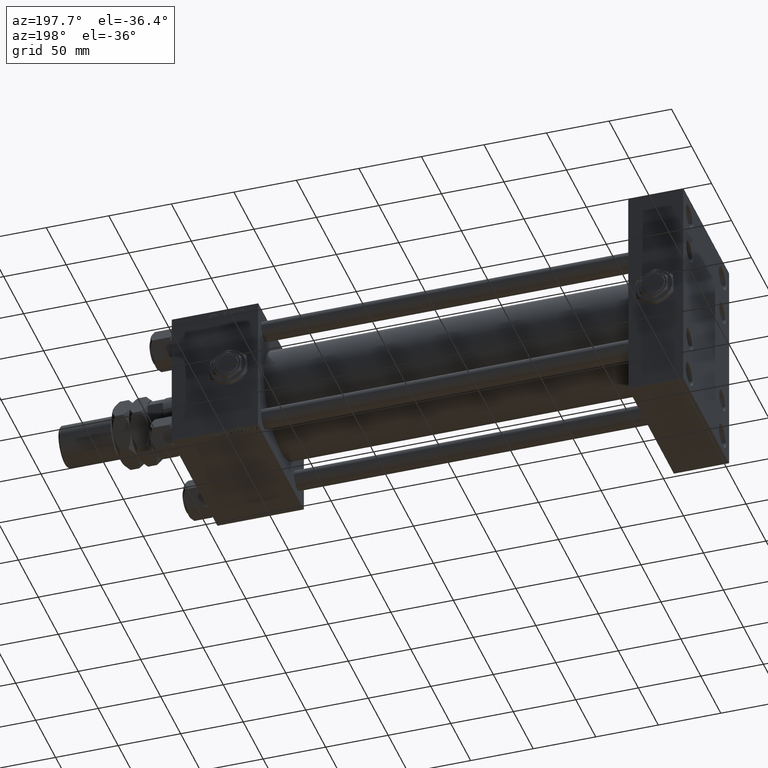
[diagram: clean part render]
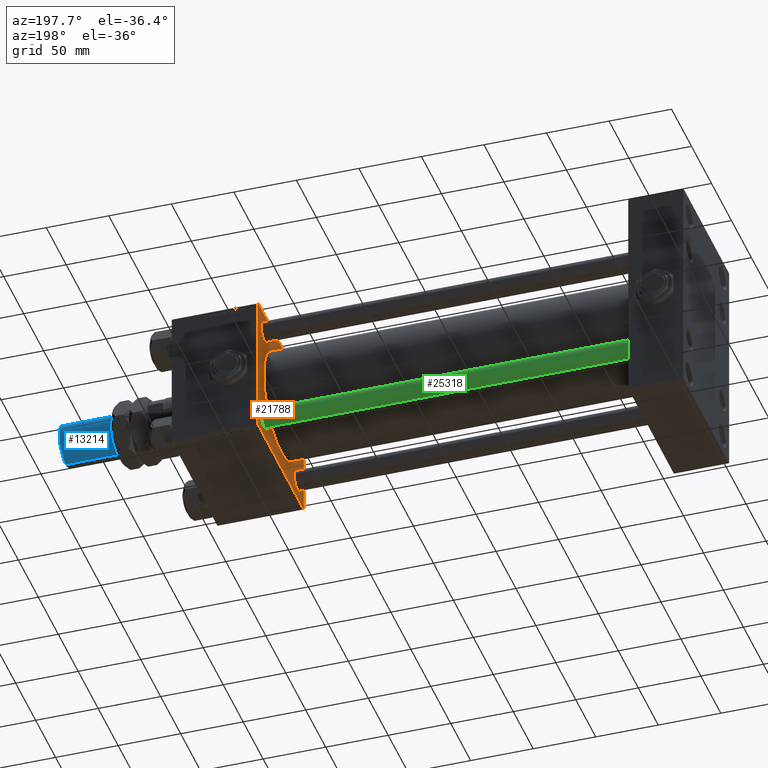
[diagram: same view with three faces highlighted in distinct colors, each labeled with its STEP entity id]
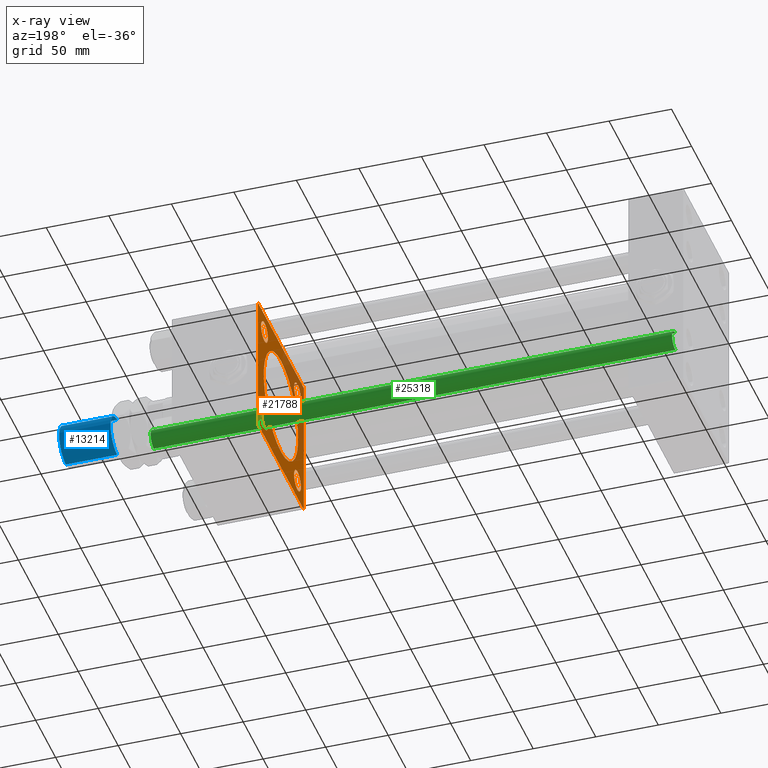
[diagram: x-ray of the same camera — body ghosted, the three highlighted faces saturated]
A machine part, auxiliary view with three faces highlighted in distinct colors.
The next image is the same camera in x-ray (body ghosted, the three faces saturated) — at least one of them is partly hidden behind the body in this view.
Their STEP definitions:

[orange] entity #21788 — the highlighted planar face has unit normal (-1, 0, 0).
#540 = AXIS2_PLACEMENT_3D ( 'NONE', #29368, #42244, #24723 ) ;
#1245 = CARTESIAN_POINT ( 'NONE',  ( 339.9999999999999432, 41.34999999999999432, -32.84999999999999432 ) ) ;
#1278 = CARTESIAN_POINT ( 'NONE',  ( 339.9999999999999432, -57.49999999999999289, -57.00000000000003553 ) ) ;
#1740 = DIRECTION ( 'NONE',  ( -0.000000000000000000, 0.7071067811865916486, 0.7071067811865033859 ) ) ;
#1882 = LINE ( 'NONE', #22691, #53418 ) ;
#2381 = VERTEX_POINT ( 'NONE', #39546 ) ;
#2753 = DIRECTION ( 'NONE',  ( 1.000000000000000000, -0.000000000000000000, 0.000000000000000000 ) ) ;
#2756 = EDGE_CURVE ( 'NONE', #51855, #49587, #40961, .T. ) ;
#2968 = CARTESIAN_POINT ( 'NONE',  ( 339.9999999999999432, 57.25000000000000711, 57.25000000000000711 ) ) ;
#3002 = CARTESIAN_POINT ( 'NONE',  ( 339.9999999999999432, -57.24999999999642597, -57.25000000000358114 ) ) ;
#3227 = CIRCLE ( 'NONE', #47851, 8.500000000000007105 ) ;
#3927 = EDGE_CURVE ( 'NONE', #13179, #33419, #50638, .T. ) ;
#4231 = DIRECTION ( 'NONE',  ( 0.000000000000000000, 0.000000000000000000, 1.000000000000000000 ) ) ;
#4646 = DIRECTION ( 'NONE',  ( 0.000000000000000000, 0.000000000000000000, -1.000000000000000000 ) ) ;
#5471 = CARTESIAN_POINT ( 'NONE',  ( 339.9999999999999432, -41.34999999999998721, 49.85000000000002274 ) ) ;
#5749 = AXIS2_PLACEMENT_3D ( 'NONE', #16836, #37934, #17924 ) ;
#5795 = CIRCLE ( 'NONE', #540, 8.500000000000007105 ) ;
#5798 = EDGE_CURVE ( 'NONE', #33419, #13179, #47227, .T. ) ;
#5812 = CARTESIAN_POINT ( 'NONE',  ( 339.9999999999999432, 41.34999999999999432, 49.85000000000001563 ) ) ;
#6163 = ORIENTED_EDGE ( 'NONE', *, *, #3927, .T. ) ;
#6432 = ORIENTED_EDGE ( 'NONE', *, *, #28212, .T. ) ;
#6568 = CARTESIAN_POINT ( 'NONE',  ( 339.9999999999999432, -41.34999999999998721, -32.85000000000000142 ) ) ;
#6945 = DIRECTION ( 'NONE',  ( -1.000000000000000000, 0.000000000000000000, -0.000000000000000000 ) ) ;
#7216 = CARTESIAN_POINT ( 'NONE',  ( 339.9999999999999432, 0.000000000000000000, 0.000000000000000000 ) ) ;
#7299 = VERTEX_POINT ( 'NONE', #41537 ) ;
#7443 = EDGE_CURVE ( 'NONE', #27370, #47307, #19069, .T. ) ;
#7678 = CARTESIAN_POINT ( 'NONE',  ( 339.9999999999999432, -57.49999999999999289, 57.00000000000004974 ) ) ;
#7747 = FACE_BOUND ( 'NONE', #22627, .T. ) ;
#7915 = CARTESIAN_POINT ( 'NONE',  ( 339.9999999999999432, 41.34999999999999432, 41.35000000000000142 ) ) ;
#8013 = FACE_BOUND ( 'NONE', #41995, .T. ) ;
#8372 = VERTEX_POINT ( 'NONE', #5471 ) ;
#9138 = ORIENTED_EDGE ( 'NONE', *, *, #53146, .T. ) ;
#9851 = CARTESIAN_POINT ( 'NONE',  ( 339.9999999999999432, 57.50000000000000000, -56.99999999999996447 ) ) ;
#11018 = CARTESIAN_POINT ( 'NONE',  ( 339.9999999999999432, -57.24999999999642597, 57.25000000000358114 ) ) ;
#11361 = CIRCLE ( 'NONE', #41964, 8.500000000000007105 ) ;
#11640 = CARTESIAN_POINT ( 'NONE',  ( 339.9999999999999432, -41.34999999999998721, -41.35000000000000853 ) ) ;
#12387 = EDGE_CURVE ( 'NONE', #7299, #40552, #45458, .T. ) ;
#12975 = VERTEX_POINT ( 'NONE', #5812 ) ;
#13179 = VERTEX_POINT ( 'NONE', #29569 ) ;
#14060 = VECTOR ( 'NONE', #14537, 1000.000000000000114 ) ;
#14537 = DIRECTION ( 'NONE',  ( 0.000000000000000000, -0.7071067811865916486, 0.7071067811865033859 ) ) ;
#14737 = DIRECTION ( 'NONE',  ( 1.000000000000000000, -0.000000000000000000, 0.000000000000000000 ) ) ;
#14790 = AXIS2_PLACEMENT_3D ( 'NONE', #11640, #40418, #31915 ) ;
#14832 = CARTESIAN_POINT ( 'NONE',  ( 339.9999999999999432, -41.34999999999998721, 32.85000000000000142 ) ) ;
#15006 = ORIENTED_EDGE ( 'NONE', *, *, #38884, .T. ) ;
#15169 = PLANE ( 'NONE',  #29270 ) ;
#16086 = EDGE_CURVE ( 'NONE', #49587, #51855, #52691, .T. ) ;
#16836 = CARTESIAN_POINT ( 'NONE',  ( 339.9999999999999432, 41.34999999999999432, -41.35000000000000142 ) ) ;
#17106 = CIRCLE ( 'NONE', #5749, 8.500000000000007105 ) ;
#17223 = EDGE_CURVE ( 'NONE', #46890, #7299, #32244, .T. ) ;
#17924 = DIRECTION ( 'NONE',  ( 0.000000000000000000, 0.000000000000000000, 1.000000000000000000 ) ) ;
#17986 = VECTOR ( 'NONE', #44606, 1000.000000000000114 ) ;
#18653 = CARTESIAN_POINT ( 'NONE',  ( 339.9999999999999432, -41.34999999999998721, 41.35000000000000853 ) ) ;
#19069 = LINE ( 'NONE', #23437, #41035 ) ;
#19371 = CARTESIAN_POINT ( 'NONE',  ( 339.9999999999999432, -2.602085213965210642E-15, 43.00000000000000000 ) ) ;
#19749 = CARTESIAN_POINT ( 'NONE',  ( 339.9999999999999432, 41.34999999999999432, -49.85000000000001563 ) ) ;
#20346 = CARTESIAN_POINT ( 'NONE',  ( 339.9999999999999432, 57.00000000000000000, 57.50000000000000711 ) ) ;
#20440 = VERTEX_POINT ( 'NONE', #20346 ) ;
#20454 = DIRECTION ( 'NONE',  ( -0.000000000000000000, -0.7071067811865474617, -0.7071067811865474617 ) ) ;
#20465 = LINE ( 'NONE', #2968, #17986 ) ;
#21788 = ADVANCED_FACE ( 'NONE', ( #32383, #8013, #40099, #7747, #52698, #35975 ), #15169, .T. ) ;
#21942 = ORIENTED_EDGE ( 'NONE', *, *, #12387, .T. ) ;
#22516 = VECTOR ( 'NONE', #1740, 1000.000000000000114 ) ;
#22627 = EDGE_LOOP ( 'NONE', ( #24035, #6163 ) ) ;
#22691 = CARTESIAN_POINT ( 'NONE',  ( 339.9999999999999432, 57.50000000000000000, 57.50000000000000711 ) ) ;
#23162 = EDGE_CURVE ( 'NONE', #20440, #42677, #20465, .T. ) ;
#23437 = CARTESIAN_POINT ( 'NONE',  ( 339.9999999999999432, -57.49999999999999289, 57.49999999999999289 ) ) ;
#24035 = ORIENTED_EDGE ( 'NONE', *, *, #5798, .T. ) ;
#24050 = ORIENTED_EDGE ( 'NONE', *, *, #47164, .T. ) ;
#24598 = ORIENTED_EDGE ( 'NONE', *, *, #33784, .T. ) ;
#24638 = CARTESIAN_POINT ( 'NONE',  ( 339.9999999999999432, 57.50000000000000000, -57.49999999999996447 ) ) ;
#24723 = DIRECTION ( 'NONE',  ( 0.000000000000000000, 0.000000000000000000, 1.000000000000000000 ) ) ;
#24787 = ORIENTED_EDGE ( 'NONE', *, *, #35345, .T. ) ;
#24867 = CARTESIAN_POINT ( 'NONE',  ( 339.9999999999999432, -56.99999999999998579, 57.49999999999999289 ) ) ;
#24883 = DIRECTION ( 'NONE',  ( 0.000000000000000000, 0.000000000000000000, 1.000000000000000000 ) ) ;
#25278 = AXIS2_PLACEMENT_3D ( 'NONE', #30611, #47329, #34995 ) ;
#27370 = VERTEX_POINT ( 'NONE', #7678 ) ;
#27652 = DIRECTION ( 'NONE',  ( 0.000000000000000000, 0.000000000000000000, 1.000000000000000000 ) ) ;
#28130 = DIRECTION ( 'NONE',  ( 1.000000000000000000, 0.000000000000000000, 0.000000000000000000 ) ) ;
#28212 = EDGE_CURVE ( 'NONE', #8372, #46688, #5795, .T. ) ;
#29033 = AXIS2_PLACEMENT_3D ( 'NONE', #33641, #41598, #4646 ) ;
#29110 = VECTOR ( 'NONE', #20454, 1000.000000000000114 ) ;
#29270 = AXIS2_PLACEMENT_3D ( 'NONE', #7216, #6945, #31860 ) ;
#29368 = CARTESIAN_POINT ( 'NONE',  ( 339.9999999999999432, -41.34999999999998721, 41.35000000000000853 ) ) ;
#29569 = CARTESIAN_POINT ( 'NONE',  ( 339.9999999999999432, -41.34999999999998721, -49.85000000000002274 ) ) ;
#30611 = CARTESIAN_POINT ( 'NONE',  ( 339.9999999999999432, 41.34999999999999432, -41.35000000000000142 ) ) ;
#30749 = VERTEX_POINT ( 'NONE', #24867 ) ;
#31130 = EDGE_CURVE ( 'NONE', #27370, #30749, #31564, .T. ) ;
#31564 = LINE ( 'NONE', #11018, #22516 ) ;
#31860 = DIRECTION ( 'NONE',  ( -0.000000000000000000, 0.000000000000000000, 1.000000000000000000 ) ) ;
#31915 = DIRECTION ( 'NONE',  ( 0.000000000000000000, 0.000000000000000000, 1.000000000000000000 ) ) ;
#32244 = LINE ( 'NONE', #33858, #29110 ) ;
#32333 = VERTEX_POINT ( 'NONE', #19749 ) ;
#32383 = FACE_BOUND ( 'NONE', #38176, .T. ) ;
#32399 = CIRCLE ( 'NONE', #35042, 8.500000000000007105 ) ;
#32773 = DIRECTION ( 'NONE',  ( 0.000000000000000000, 0.000000000000000000, -1.000000000000000000 ) ) ;
#32781 = ORIENTED_EDGE ( 'NONE', *, *, #31130, .T. ) ;
#33292 = CARTESIAN_POINT ( 'NONE',  ( 339.9999999999999432, 2.663896022368408223E-15, -43.00000000000000000 ) ) ;
#33313 = LINE ( 'NONE', #53625, #40913 ) ;
#33419 = VERTEX_POINT ( 'NONE', #6568 ) ;
#33641 = CARTESIAN_POINT ( 'NONE',  ( 339.9999999999999432, -2.602085213965210642E-15, 0.000000000000000000 ) ) ;
#33784 = EDGE_CURVE ( 'NONE', #32333, #42233, #44533, .T. ) ;
#33858 = CARTESIAN_POINT ( 'NONE',  ( 339.9999999999999432, 57.24999999999998579, -57.24999999999998579 ) ) ;
#34363 = EDGE_LOOP ( 'NONE', ( #37066, #45638 ) ) ;
#34746 = EDGE_CURVE ( 'NONE', #20440, #30749, #1882, .T. ) ;
#34860 = EDGE_LOOP ( 'NONE', ( #21942, #35589, #53163, #32781, #43776, #46581, #24050, #52581 ) ) ;
#34995 = DIRECTION ( 'NONE',  ( 0.000000000000000000, 0.000000000000000000, 1.000000000000000000 ) ) ;
#35042 = AXIS2_PLACEMENT_3D ( 'NONE', #7915, #49550, #24883 ) ;
#35221 = EDGE_CURVE ( 'NONE', #40552, #47307, #47683, .T. ) ;
#35345 = EDGE_CURVE ( 'NONE', #2381, #12975, #32399, .T. ) ;
#35589 = ORIENTED_EDGE ( 'NONE', *, *, #35221, .T. ) ;
#35765 = DIRECTION ( 'NONE',  ( 0.000000000000000000, 0.000000000000000000, -1.000000000000000000 ) ) ;
#35975 = FACE_OUTER_BOUND ( 'NONE', #34860, .T. ) ;
#36622 = CARTESIAN_POINT ( 'NONE',  ( 339.9999999999999432, -2.602085213965210642E-15, 0.000000000000000000 ) ) ;
#36626 = DIRECTION ( 'NONE',  ( 1.000000000000000000, -0.000000000000000000, 0.000000000000000000 ) ) ;
#37066 = ORIENTED_EDGE ( 'NONE', *, *, #16086, .T. ) ;
#37934 = DIRECTION ( 'NONE',  ( 1.000000000000000000, -0.000000000000000000, 0.000000000000000000 ) ) ;
#38176 = EDGE_LOOP ( 'NONE', ( #6432, #41401 ) ) ;
#38705 = CARTESIAN_POINT ( 'NONE',  ( 339.9999999999999432, -56.99999999999998579, -57.49999999999997868 ) ) ;
#38884 = EDGE_CURVE ( 'NONE', #42233, #32333, #17106, .T. ) ;
#39388 = AXIS2_PLACEMENT_3D ( 'NONE', #44307, #14737, #44574 ) ;
#39546 = CARTESIAN_POINT ( 'NONE',  ( 339.9999999999999432, 41.34999999999999432, 32.84999999999999432 ) ) ;
#40099 = FACE_BOUND ( 'NONE', #47925, .T. ) ;
#40262 = CARTESIAN_POINT ( 'NONE',  ( 339.9999999999999432, 57.50000000000000000, 57.00000000000000711 ) ) ;
#40418 = DIRECTION ( 'NONE',  ( 1.000000000000000000, -0.000000000000000000, 0.000000000000000000 ) ) ;
#40475 = DIRECTION ( 'NONE',  ( 0.000000000000000000, 0.000000000000000000, -1.000000000000000000 ) ) ;
#40552 = VERTEX_POINT ( 'NONE', #38705 ) ;
#40913 = VECTOR ( 'NONE', #32773, 1000.000000000000000 ) ;
#40961 = CIRCLE ( 'NONE', #52365, 43.00000000000000000 ) ;
#41035 = VECTOR ( 'NONE', #35765, 1000.000000000000000 ) ;
#41401 = ORIENTED_EDGE ( 'NONE', *, *, #45460, .T. ) ;
#41537 = CARTESIAN_POINT ( 'NONE',  ( 339.9999999999999432, 57.00000000000000000, -57.49999999999996447 ) ) ;
#41598 = DIRECTION ( 'NONE',  ( 1.000000000000000000, 0.000000000000000000, 0.000000000000000000 ) ) ;
#41738 = CARTESIAN_POINT ( 'NONE',  ( 339.9999999999999432, 41.34999999999999432, 41.35000000000000142 ) ) ;
#41964 = AXIS2_PLACEMENT_3D ( 'NONE', #41738, #36626, #4231 ) ;
#41995 = EDGE_LOOP ( 'NONE', ( #9138, #24787 ) ) ;
#42233 = VERTEX_POINT ( 'NONE', #1245 ) ;
#42244 = DIRECTION ( 'NONE',  ( 1.000000000000000000, -0.000000000000000000, 0.000000000000000000 ) ) ;
#42677 = VERTEX_POINT ( 'NONE', #40262 ) ;
#43776 = ORIENTED_EDGE ( 'NONE', *, *, #34746, .F. ) ;
#44307 = CARTESIAN_POINT ( 'NONE',  ( 339.9999999999999432, -41.34999999999998721, -41.35000000000000853 ) ) ;
#44533 = CIRCLE ( 'NONE', #25278, 8.500000000000007105 ) ;
#44574 = DIRECTION ( 'NONE',  ( 0.000000000000000000, 0.000000000000000000, 1.000000000000000000 ) ) ;
#44606 = DIRECTION ( 'NONE',  ( 0.000000000000000000, 0.7071067811865474617, -0.7071067811865474617 ) ) ;
#44815 = VECTOR ( 'NONE', #53954, 1000.000000000000000 ) ;
#45458 = LINE ( 'NONE', #24638, #44815 ) ;
#45460 = EDGE_CURVE ( 'NONE', #46688, #8372, #3227, .T. ) ;
#45638 = ORIENTED_EDGE ( 'NONE', *, *, #2756, .T. ) ;
#46581 = ORIENTED_EDGE ( 'NONE', *, *, #23162, .T. ) ;
#46688 = VERTEX_POINT ( 'NONE', #14832 ) ;
#46890 = VERTEX_POINT ( 'NONE', #9851 ) ;
#47164 = EDGE_CURVE ( 'NONE', #42677, #46890, #33313, .T. ) ;
#47227 = CIRCLE ( 'NONE', #39388, 8.500000000000007105 ) ;
#47307 = VERTEX_POINT ( 'NONE', #1278 ) ;
#47329 = DIRECTION ( 'NONE',  ( 1.000000000000000000, -0.000000000000000000, 0.000000000000000000 ) ) ;
#47683 = LINE ( 'NONE', #3002, #14060 ) ;
#47851 = AXIS2_PLACEMENT_3D ( 'NONE', #18653, #2753, #27652 ) ;
#47925 = EDGE_LOOP ( 'NONE', ( #15006, #24598 ) ) ;
#49550 = DIRECTION ( 'NONE',  ( 1.000000000000000000, -0.000000000000000000, 0.000000000000000000 ) ) ;
#49587 = VERTEX_POINT ( 'NONE', #19371 ) ;
#50638 = CIRCLE ( 'NONE', #14790, 8.500000000000007105 ) ;
#51451 = DIRECTION ( 'NONE',  ( 0.000000000000000000, -1.000000000000000000, -1.206764157201257291E-16 ) ) ;
#51855 = VERTEX_POINT ( 'NONE', #33292 ) ;
#52365 = AXIS2_PLACEMENT_3D ( 'NONE', #36622, #28130, #40475 ) ;
#52581 = ORIENTED_EDGE ( 'NONE', *, *, #17223, .T. ) ;
#52691 = CIRCLE ( 'NONE', #29033, 43.00000000000000000 ) ;
#52698 = FACE_BOUND ( 'NONE', #34363, .T. ) ;
#53146 = EDGE_CURVE ( 'NONE', #12975, #2381, #11361, .T. ) ;
#53163 = ORIENTED_EDGE ( 'NONE', *, *, #7443, .F. ) ;
#53418 = VECTOR ( 'NONE', #51451, 1000.000000000000000 ) ;
#53625 = CARTESIAN_POINT ( 'NONE',  ( 339.9999999999999432, 57.50000000000000000, 57.50000000000000711 ) ) ;
#53954 = DIRECTION ( 'NONE',  ( 0.000000000000000000, -1.000000000000000000, -1.206764157201257291E-16 ) ) ;

[blue] entity #13214 — the highlighted cylindrical surface (edge-blend (fillet) strip) has radius 16.5 mm, axis along (-1, -0, 0).
#266 = CARTESIAN_POINT ( 'NONE',  ( 0.000000000000000000, 0.000000000000000000, 73.00000000000000000 ) ) ;
#393 = EDGE_CURVE ( 'NONE', #16564, #30171, #16070, .T. ) ;
#821 = FACE_OUTER_BOUND ( 'NONE', #26843, .T. ) ;
#2530 = CARTESIAN_POINT ( 'NONE',  ( -16.50000000000000000, 0.000000000000000000, 30.99999999999998579 ) ) ;
#2566 = CARTESIAN_POINT ( 'NONE',  ( 16.50000000000000000, 2.020667218593133100E-15, 73.00000000000000000 ) ) ;
#3199 = CIRCLE ( 'NONE', #32922, 16.50000000000000000 ) ;
#4393 = DIRECTION ( 'NONE',  ( -0.000000000000000000, -0.000000000000000000, -1.000000000000000000 ) ) ;
#7090 = DIRECTION ( 'NONE',  ( 1.000000000000000000, 0.000000000000000000, 0.000000000000000000 ) ) ;
#11833 = CIRCLE ( 'NONE', #21572, 16.50000000000000000 ) ;
#13214 = ADVANCED_FACE ( 'NONE', ( #821 ), #21625, .T. ) ;
#14061 = VERTEX_POINT ( 'NONE', #28550 ) ;
#14987 = AXIS2_PLACEMENT_3D ( 'NONE', #266, #4393, #28156 ) ;
#15309 = DIRECTION ( 'NONE',  ( 1.000000000000000000, 0.000000000000000000, 0.000000000000000000 ) ) ;
#15418 = LINE ( 'NONE', #2566, #25111 ) ;
#16070 = LINE ( 'NONE', #16335, #39200 ) ;
#16335 = CARTESIAN_POINT ( 'NONE',  ( -16.50000000000000000, 0.000000000000000000, 73.00000000000000000 ) ) ;
#16564 = VERTEX_POINT ( 'NONE', #22085 ) ;
#17348 = ORIENTED_EDGE ( 'NONE', *, *, #393, .F. ) ;
#17938 = ORIENTED_EDGE ( 'NONE', *, *, #28399, .T. ) ;
#18415 = CARTESIAN_POINT ( 'NONE',  ( 0.000000000000000000, 0.000000000000000000, 30.99999999999998579 ) ) ;
#20711 = DIRECTION ( 'NONE',  ( -0.000000000000000000, -0.000000000000000000, -1.000000000000000000 ) ) ;
#21572 = AXIS2_PLACEMENT_3D ( 'NONE', #52838, #53102, #15309 ) ;
#21625 = CYLINDRICAL_SURFACE ( 'NONE', #14987, 16.50000000000000000 ) ;
#22085 = CARTESIAN_POINT ( 'NONE',  ( -16.50000000000000000, 0.000000000000000000, 72.00000000000000000 ) ) ;
#22243 = DIRECTION ( 'NONE',  ( -0.000000000000000000, -0.000000000000000000, 1.000000000000000000 ) ) ;
#22889 = VERTEX_POINT ( 'NONE', #29300 ) ;
#23635 = DIRECTION ( 'NONE',  ( -0.000000000000000000, -0.000000000000000000, -1.000000000000000000 ) ) ;
#25111 = VECTOR ( 'NONE', #23635, 1000.000000000000000 ) ;
#25687 = EDGE_CURVE ( 'NONE', #16564, #14061, #11833, .T. ) ;
#26843 = EDGE_LOOP ( 'NONE', ( #30957, #37842, #17938, #17348 ) ) ;
#28156 = DIRECTION ( 'NONE',  ( -1.000000000000000000, 0.000000000000000000, 0.000000000000000000 ) ) ;
#28399 = EDGE_CURVE ( 'NONE', #22889, #30171, #3199, .T. ) ;
#28550 = CARTESIAN_POINT ( 'NONE',  ( 16.50000000000000000, 2.020667218593133100E-15, 72.00000000000000000 ) ) ;
#29300 = CARTESIAN_POINT ( 'NONE',  ( 16.50000000000000000, 2.020667218593133100E-15, 30.99999999999998579 ) ) ;
#30171 = VERTEX_POINT ( 'NONE', #2530 ) ;
#30957 = ORIENTED_EDGE ( 'NONE', *, *, #25687, .T. ) ;
#32922 = AXIS2_PLACEMENT_3D ( 'NONE', #18415, #22243, #7090 ) ;
#37842 = ORIENTED_EDGE ( 'NONE', *, *, #46419, .T. ) ;
#39200 = VECTOR ( 'NONE', #20711, 1000.000000000000000 ) ;
#46419 = EDGE_CURVE ( 'NONE', #14061, #22889, #15418, .T. ) ;
#52838 = CARTESIAN_POINT ( 'NONE',  ( 0.000000000000000000, 0.000000000000000000, 72.00000000000000000 ) ) ;
#53102 = DIRECTION ( 'NONE',  ( 0.000000000000000000, 0.000000000000000000, -1.000000000000000000 ) ) ;

[green] entity #25318 — the highlighted cylindrical surface (edge-blend (fillet) strip) has radius 8 mm, axis along (-1, 0, 0).
#530 = EDGE_CURVE ( 'NONE', #39039, #12764, #7858, .T. ) ;
#903 = DIRECTION ( 'NONE',  ( 0.000000000000000000, 0.000000000000000000, -1.000000000000000000 ) ) ;
#1768 = AXIS2_PLACEMENT_3D ( 'NONE', #5439, #51988, #26507 ) ;
#2374 = CARTESIAN_POINT ( 'NONE',  ( -8.000000000000000000, 0.000000000000000000, 418.0000000000000000 ) ) ;
#2911 = DIRECTION ( 'NONE',  ( -0.000000000000000000, -0.000000000000000000, -1.000000000000000000 ) ) ;
#3988 = ORIENTED_EDGE ( 'NONE', *, *, #5663, .T. ) ;
#5439 = CARTESIAN_POINT ( 'NONE',  ( 0.000000000000000000, 0.000000000000000000, 0.5000000000000004441 ) ) ;
#5663 = EDGE_CURVE ( 'NONE', #28262, #12764, #33196, .T. ) ;
#6475 = CARTESIAN_POINT ( 'NONE',  ( 8.000000000000000000, 9.797174393178825657E-16, 0.5000000000000004441 ) ) ;
#7858 = LINE ( 'NONE', #41532, #19889 ) ;
#12420 = CARTESIAN_POINT ( 'NONE',  ( 0.000000000000000000, 0.000000000000000000, 417.5000000000001137 ) ) ;
#12764 = VERTEX_POINT ( 'NONE', #6475 ) ;
#16469 = CIRCLE ( 'NONE', #29571, 8.000000000000000000 ) ;
#17121 = ORIENTED_EDGE ( 'NONE', *, *, #49188, .T. ) ;
#17614 = DIRECTION ( 'NONE',  ( 1.000000000000000000, 0.000000000000000000, 0.000000000000000000 ) ) ;
#19889 = VECTOR ( 'NONE', #24014, 1000.000000000000000 ) ;
#21850 = EDGE_LOOP ( 'NONE', ( #23273, #17121, #25340, #3988 ) ) ;
#23273 = ORIENTED_EDGE ( 'NONE', *, *, #530, .F. ) ;
#24014 = DIRECTION ( 'NONE',  ( -0.000000000000000000, -0.000000000000000000, -1.000000000000000000 ) ) ;
#24117 = DIRECTION ( 'NONE',  ( -0.000000000000000000, -0.000000000000000000, -1.000000000000000000 ) ) ;
#25318 = ADVANCED_FACE ( 'NONE', ( #36721 ), #43891, .T. ) ;
#25340 = ORIENTED_EDGE ( 'NONE', *, *, #39687, .T. ) ;
#26507 = DIRECTION ( 'NONE',  ( 1.000000000000000000, 0.000000000000000000, 0.000000000000000000 ) ) ;
#27163 = DIRECTION ( 'NONE',  ( -1.000000000000000000, 0.000000000000000000, 0.000000000000000000 ) ) ;
#27958 = CARTESIAN_POINT ( 'NONE',  ( 0.000000000000000000, 0.000000000000000000, 418.0000000000000000 ) ) ;
#28262 = VERTEX_POINT ( 'NONE', #33737 ) ;
#28508 = VECTOR ( 'NONE', #2911, 1000.000000000000000 ) ;
#29571 = AXIS2_PLACEMENT_3D ( 'NONE', #12420, #903, #17614 ) ;
#30865 = LINE ( 'NONE', #2374, #28508 ) ;
#31336 = CARTESIAN_POINT ( 'NONE',  ( 8.000000000000000000, 9.797174393178825657E-16, 417.5000000000001137 ) ) ;
#32807 = AXIS2_PLACEMENT_3D ( 'NONE', #27958, #24117, #27163 ) ;
#33196 = CIRCLE ( 'NONE', #1768, 8.000000000000000000 ) ;
#33737 = CARTESIAN_POINT ( 'NONE',  ( -8.000000000000000000, 0.000000000000000000, 0.5000000000000004441 ) ) ;
#36721 = FACE_OUTER_BOUND ( 'NONE', #21850, .T. ) ;
#39039 = VERTEX_POINT ( 'NONE', #31336 ) ;
#39687 = EDGE_CURVE ( 'NONE', #41273, #28262, #30865, .T. ) ;
#41273 = VERTEX_POINT ( 'NONE', #43210 ) ;
#41532 = CARTESIAN_POINT ( 'NONE',  ( 8.000000000000000000, 9.797174393178825657E-16, 418.0000000000000000 ) ) ;
#43210 = CARTESIAN_POINT ( 'NONE',  ( -8.000000000000000000, 0.000000000000000000, 417.5000000000001137 ) ) ;
#43891 = CYLINDRICAL_SURFACE ( 'NONE', #32807, 8.000000000000000000 ) ;
#49188 = EDGE_CURVE ( 'NONE', #39039, #41273, #16469, .T. ) ;
#51988 = DIRECTION ( 'NONE',  ( -0.000000000000000000, -0.000000000000000000, 1.000000000000000000 ) ) ;